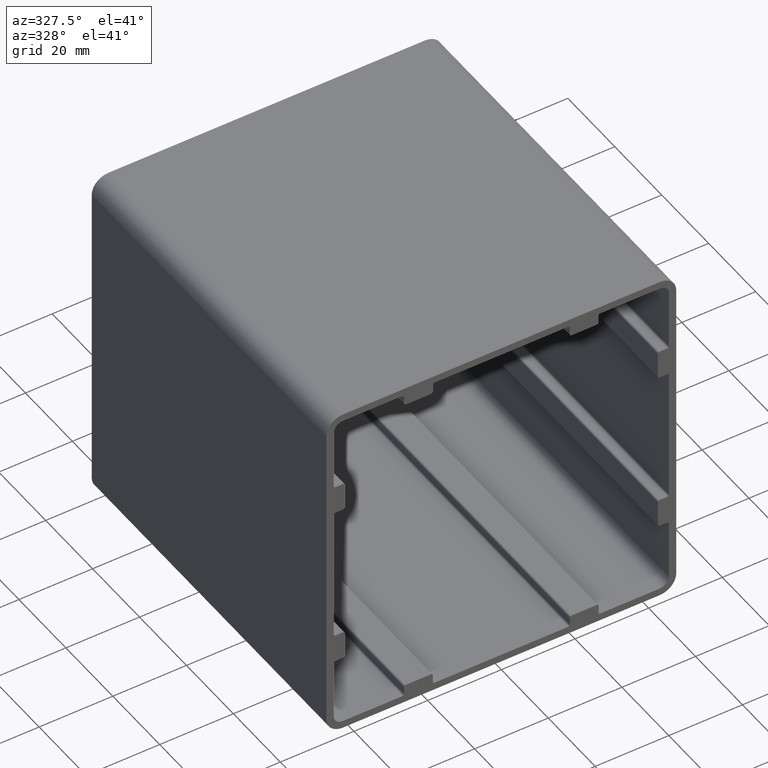
[diagram: clean part render]
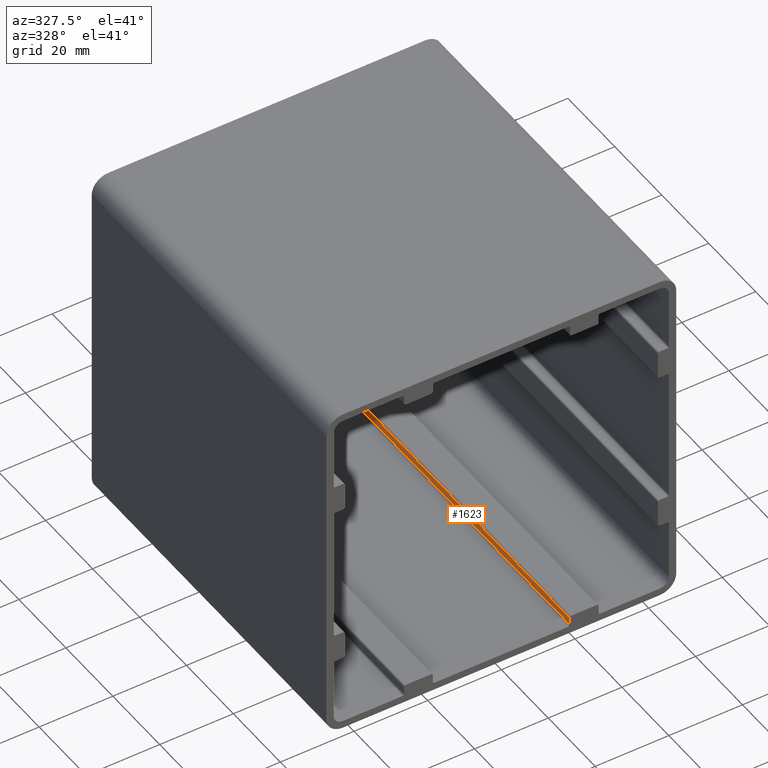
[diagram: same view with one face highlighted and labeled with its STEP entity id]
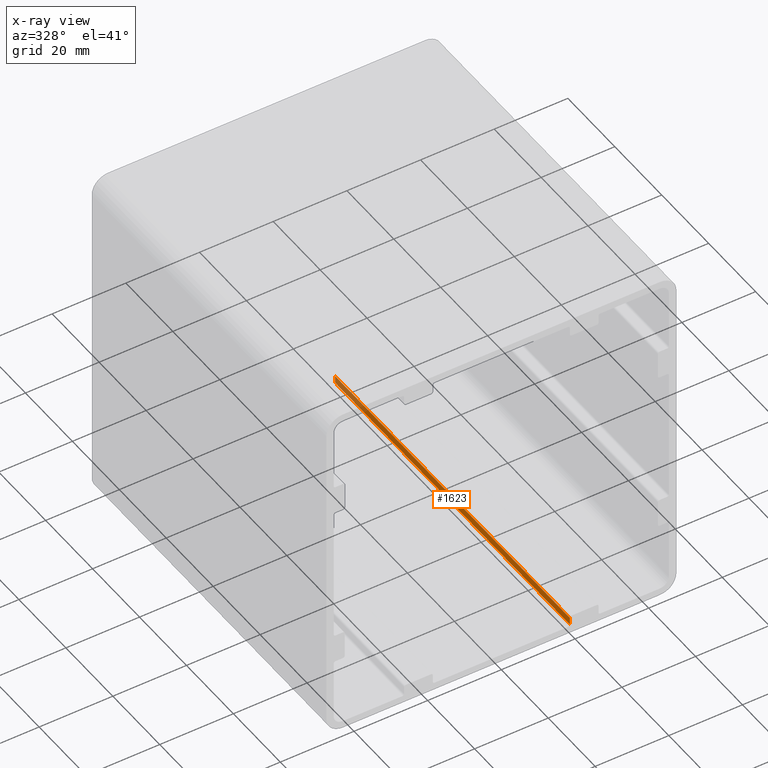
[diagram: x-ray of the same camera — body ghosted, the highlighted face saturated]
A machine part, auxiliary view. The second image highlights one B-rep face of the part: STEP entity #1623.
The next image is the same camera in x-ray: the body ghosted, the highlighted face saturated — about 13% of this face is hidden behind the body in this view.
In plain terms, the highlighted planar face has unit normal (1, 0, 0).
Its self-contained STEP definition (entity closure, byte-faithful):
#55=PLANE('',#1805);
#137=FACE_OUTER_BOUND('',#221,.T.);
#221=EDGE_LOOP('',(#1489,#1490,#1491,#1492));
#251=LINE('',#2399,#411);
#294=LINE('',#2560,#454);
#360=LINE('',#2720,#520);
#362=LINE('',#2724,#522);
#411=VECTOR('',#1891,10.);
#454=VECTOR('',#2020,10.);
#520=VECTOR('',#2204,10.);
#522=VECTOR('',#2210,10.);
#673=VERTEX_POINT('',#2396);
#674=VERTEX_POINT('',#2398);
#748=VERTEX_POINT('',#2557);
#749=VERTEX_POINT('',#2559);
#835=EDGE_CURVE('',#673,#674,#251,.T.);
#916=EDGE_CURVE('',#748,#749,#294,.T.);
#1000=EDGE_CURVE('',#674,#748,#360,.T.);
#1002=EDGE_CURVE('',#749,#673,#362,.T.);
#1489=ORIENTED_EDGE('',*,*,#1000,.F.);
#1490=ORIENTED_EDGE('',*,*,#835,.F.);
#1491=ORIENTED_EDGE('',*,*,#1002,.F.);
#1492=ORIENTED_EDGE('',*,*,#916,.F.);
#1623=ADVANCED_FACE('',(#137),#55,.F.);
#1805=AXIS2_PLACEMENT_3D('',#2774,#2287,#2288);
#1891=DIRECTION('',(0.,0.,-1.));
#2020=DIRECTION('',(0.,0.,1.));
#2204=DIRECTION('',(0.,1.,0.));
#2210=DIRECTION('',(0.,-1.,0.));
#2287=DIRECTION('center_axis',(1.,0.,0.));
#2288=DIRECTION('ref_axis',(0.,0.,1.));
#2396=CARTESIAN_POINT('',(18.6,0.,-43.));
#2398=CARTESIAN_POINT('',(18.6,0.,-45.));
#2399=CARTESIAN_POINT('',(18.6,0.,-22.75));
#2557=CARTESIAN_POINT('',(18.6,100.,-45.));
#2559=CARTESIAN_POINT('',(18.6,100.,-43.));
#2560=CARTESIAN_POINT('',(18.6,100.,-22.75));
#2720=CARTESIAN_POINT('',(18.6,100.,-45.));
#2724=CARTESIAN_POINT('',(18.6,100.,-43.));
#2774=CARTESIAN_POINT('Origin',(18.6,100.,-45.5));